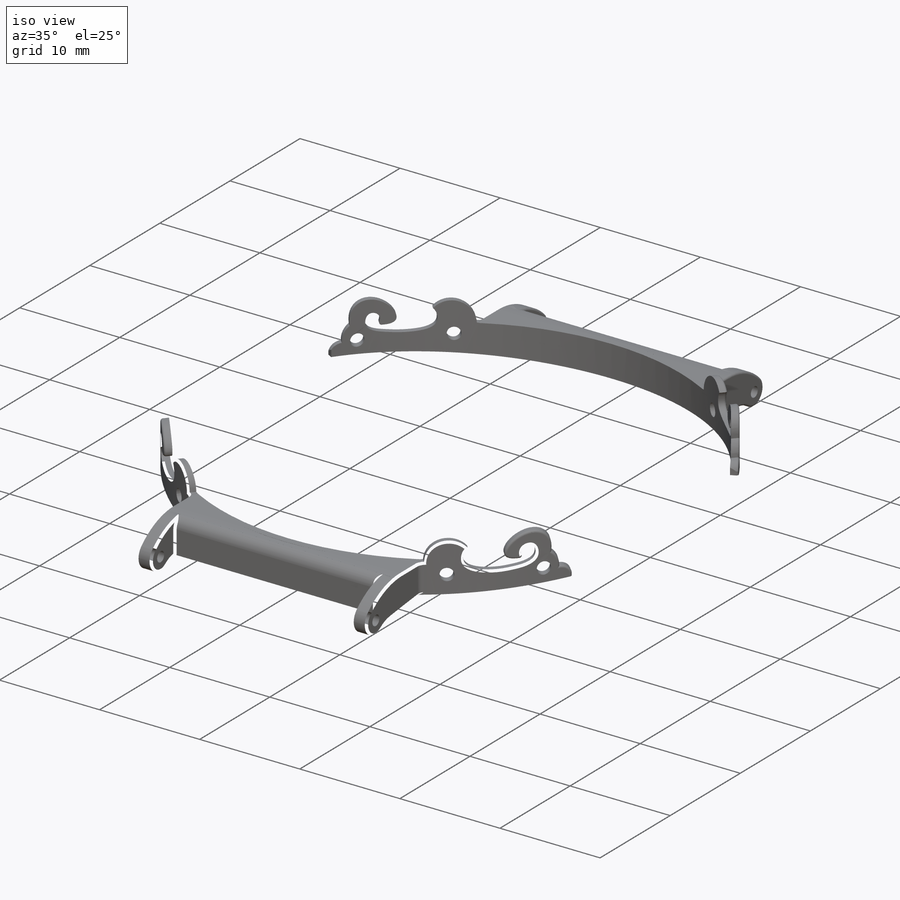
[diagram: iso view]
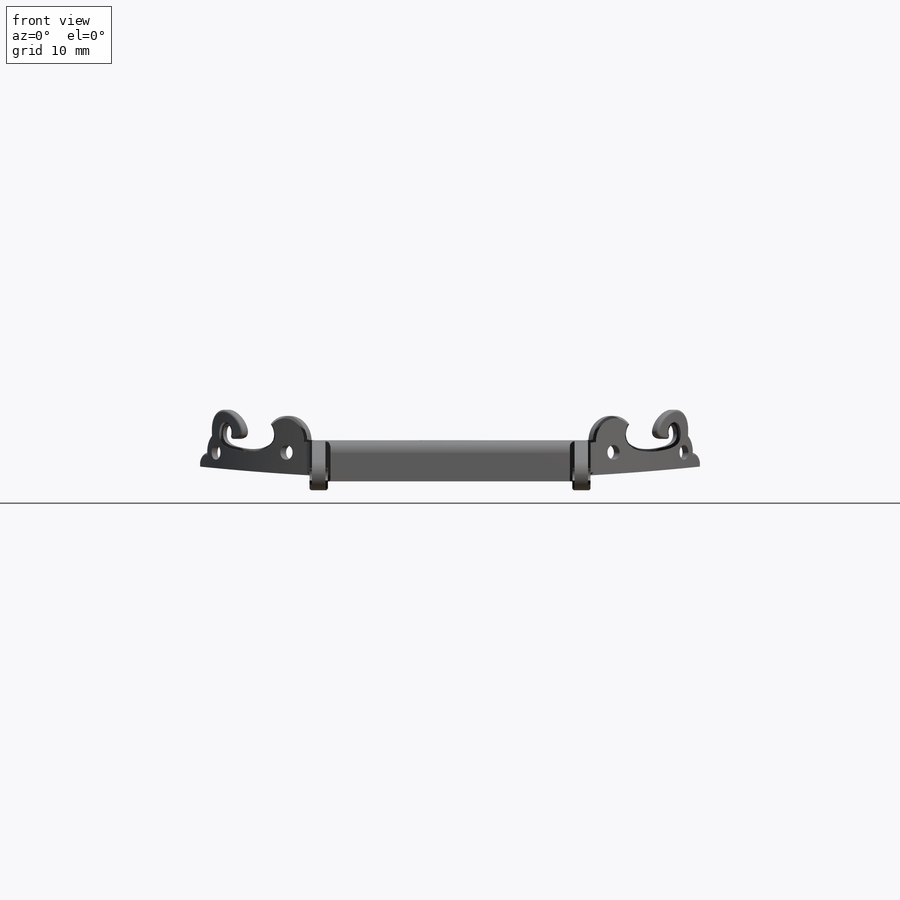
[diagram: front view]
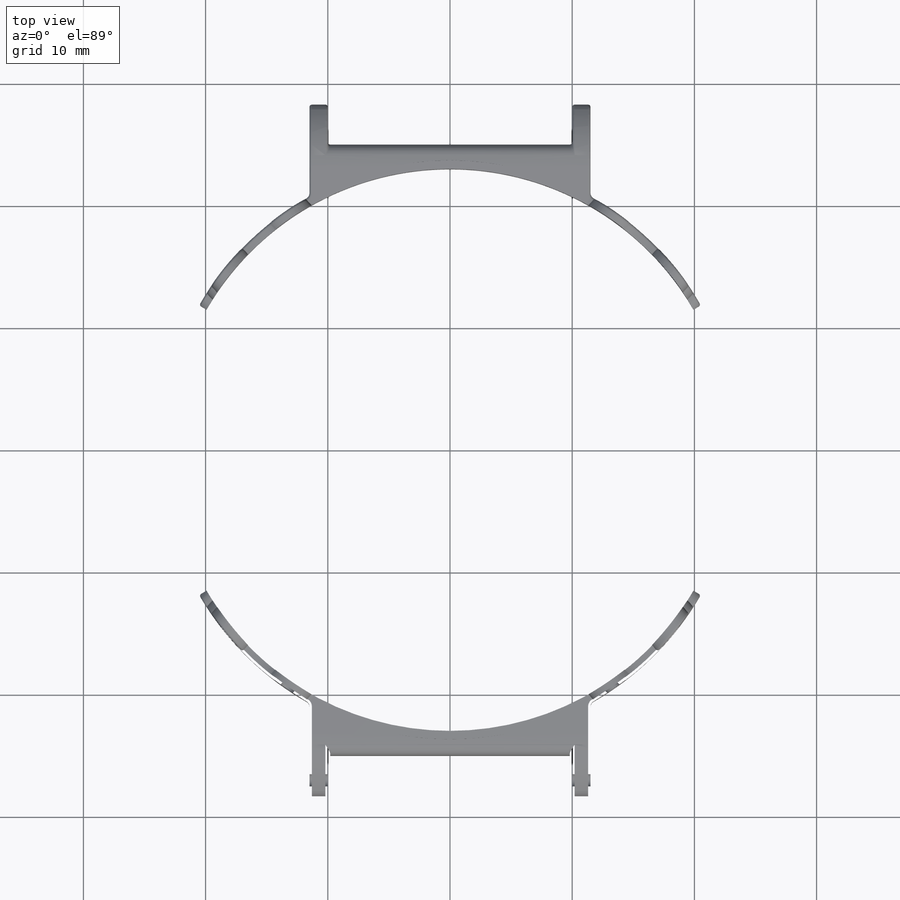
[diagram: top view]
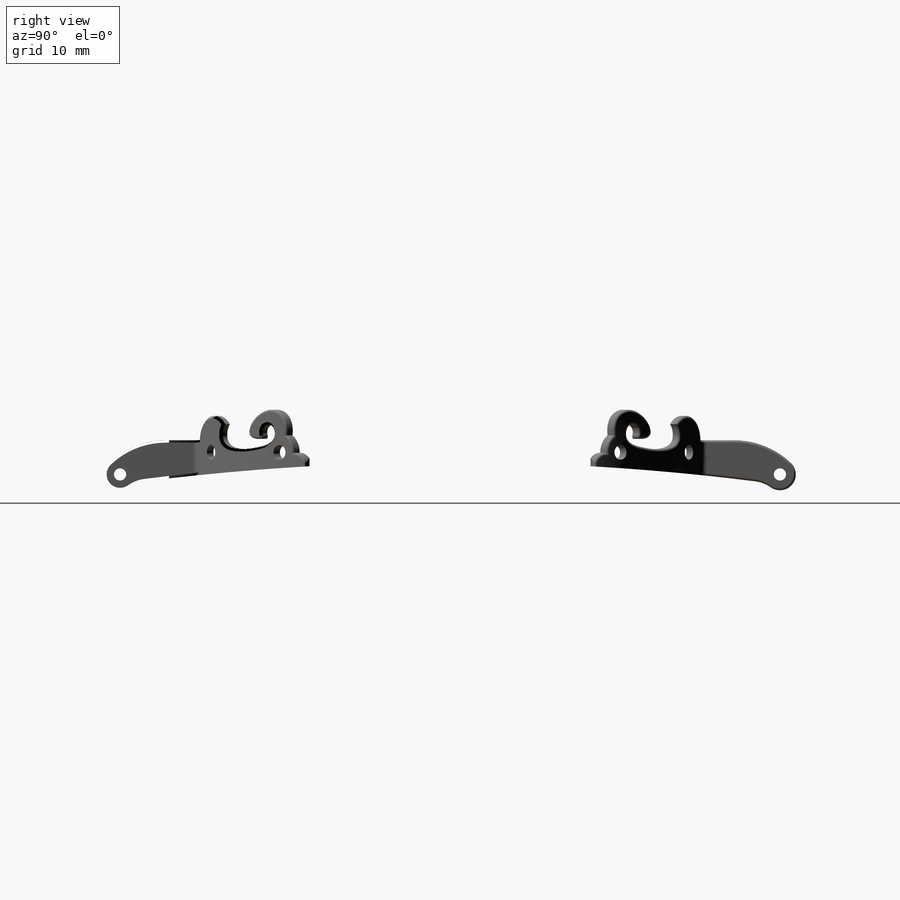
[diagram: right view]
SOLIDWORKS PART (.sldprt)
format: sldprt  version: not decoded by parser v0  size: 3,983,872 bytes
history: native  units: mm
features: sketch x30, cut_extrude x16, fillet x11, plane x9, extrude x7, mirror x4, hole x3, revolve x3, chamfer x2, material x1 (+8 scaffold rows collapsed)
feature tree (94):
  scaffold x8  (default folders/planes/origin — collapsed)
  material  "Matériau <non spécifié>"
  plane  "Plan de face"
  plane  "Plan de dessus"
  plane  "Plan de droite"
  sketch  "Esquisse1"  dims[D1=44.0mm D2=46.0mm]
  sketch  "Esquisse2"  dims[c1.D1=2.0mm c1.D2=35.0mm c2.D1=~62.135719mm c2.D2=25.0mm c2.D3=25.0mm c2.D5=1.0mm c2.D4=1.0mm]
  extrude  "Boss.-Extru.2"  Depth=46mm
  extrude  "Boss.-Extru.3"  Depth=5mm
  sketch  "Esquisse4"  dims[D1=35.0mm D2=44.0mm]
  extrude  "Boss.-Extru.4"  Depth=1mm
  sketch  "Esquisse5"  dims[D1=38.6mm]
  cut_extrude  "Enlèv. mat.-Extru.1"  Depth=46mm
  sketch  "Esquisse6"  dims[D1=0.8mm D2=2.4mm]
  cut_extrude  "Enlèv. mat.-Extru.2"  [1 undecoded]
  sketch  "Esquisse7"  dims[D3=1.3mm D1=2.8mm D2=20.0mm D4=27.0mm D5=1.0mm]
  extrude  "Boss.-Extru.5"  Depth=23mm
  sketch  "Esquisse8"
  cut_extrude  "Enlèv. mat.-Extru.3"  [1 undecoded]
  sketch  "Esquisse9"  dims[D1=20.0mm]
  cut_extrude  "Enlèv. mat.-Extru.4"  [1 undecoded]
  fillet  "Congé2"  Radius=1mm
  sketch  "Esquisse10"  dims[D1=1.0mm]
  cut_extrude  "Enlèv. mat.-Extru.5"  [1 undecoded]
  sketch  "Esquisse11"  dims[c1.D2=~11.43889mm c2.D2=120.0deg c2.D1=0.7mm]
  extrude  "Boss.-Extru.6"  [1 undecoded]
  sketch  "Esquisse12"  dims[D1=0.0mm]
  extrude  "Boss.-Extru.7"  Depth=2.5mm
  plane  "Plan1"
  sketch  "Esquisse13"
  cut_extrude  "Enlèv. mat.-Extru.6"  [1 undecoded]
  sketch  "Esquisse14"  dims[D1=1.2mm D2=1.2mm]
  cut_extrude  "Enlèv. mat.-Extru.8"  [1 undecoded]
  mirror  "Symétrie1"
  fillet  "Congé3"  Radius=0.5mm
  fillet  "Congé4"  Radius=0.2mm
  fillet  "Congé11"  Radius=0.2mm
  fillet  "Congé12"  Radius=0.2mm
  sketch  "Esquisse16"
  cut_extrude  "Enlèv. mat.-Extru.9"  [1 undecoded]
  mirror  "Symétrie2"
  fillet  "Congé6"  Radius=0.2mm
  fillet  "Congé7"  Radius=0.2mm
  plane  "Plan2"
  hole  "Dégagement M1.61"  Diameter=1.8mm Depth=3mm
  sketch  "Esquisse19"  dims[D1=9.0mm D2=9.0mm D3=~2.720365mm]
  sketch  "Esquisse18"  dims[hole-wizard template sketch: 46 standard entries collapsed; hole parameters kept: c15.Diamètre du perçage=1.8mm c15.Profondeur du perçage=3.0mm c15.D3=~14.816244mm c15.Angle de pointe=118.0deg]
  chamfer  "Chanfrein1"  Distance=0.8mm Angle=45deg
  plane  "Plan3"  Offset=27mm
  sketch  "Esquisse20"
  sketch  "Esquisse21"  dims[c1.D1=~15.350761mm c1.D2=~15.350761mm c2.D2=~13.175264deg c2.D3=~9.540183mm c2.D4=~15.350761mm c2.D5=~9.956426mm c2.D6=~3.210803mm c2.D7=~2.198554mm c2.D8=~2.274432mm]
  sketch  "Esquisse22"  dims[c1.D1=2.4mm c2.D1=0.03mm]
  chamfer  "Enroulement5"  Distance=0.03mm
  cut_extrude  "Enlèv. mat.-Extru.10"  Depth=0.03mm
  mirror  "Symétrie9"
  sketch  "Esquisse23"  dims[D1=~20.439228mm]
  cut_extrude  "Enlèv. mat.-Extru.11"  Depth=0.05mm
  plane  "Plan4"  Offset=4mm
  sketch  "Esquisse25"
  sketch  "Esquisse26"
  sketch  "Esquisse27"
  cut_extrude  "Enlèv. mat.-Extru.12"  Depth=0.05mm
  cut_extrude  "Enlèv. mat.-Extru.13"  Depth=0.05mm
  cut_extrude  "Enlèv. mat.-Extru.14"  Depth=0.05mm
  sketch  "Esquisse30"  dims[D3=0.1mm D1=0.0mm D2=0.1mm]
  extrude  "Boss.-Extru.10"  Depth=46mm
  sketch  "Esquisse31"  dims[c1.D3=1.0mm c1.D5=1.0mm c1.D1=~46.402219mm c1.D2=~41.97761mm c2.D1=2.2mm c2.D2=2.2mm c2.D4=0.1mm c2.D5=0.1mm]
  cut_extrude  "Enlèv. mat.-Extru.16"  Depth=0.1mm
  mirror  "Symétrie13"
  fillet  "Congé15"  Radius=2mm
  fillet  "Congé16"  Radius=0.3mm
  fillet  "Congé18"  Radius=0.5mm
  fillet  "Congé19"  Radius=0.5mm
  sketch  "Esquisse32"
  cut_extrude  "Enlèv. mat.-Extru.17"  [1 undecoded]
  sketch  "Esquisse34"
  cut_extrude  "Enlèv. mat.-Extru.18"  [1 undecoded]
  plane  "Plan5"  Offset=1.1mm
  sketch  "Esquisse39"  dims[c1.D1=0.7mm c1.D2=0.1mm c1.D3=0.25mm c2.D2=0.1mm]
  revolve  "Révolution2"  Angle=360deg
  sketch  "Esquisse40"  dims[c1.D1=0.7mm c1.D2=0.1mm c1.D3=0.25mm c2.D2=0.1mm]
  revolve  "Révolution3"  Angle=360deg
  plane  "Plan6"  Offset=1.1mm
  sketch  "Esquisse41"  dims[c1.D1=0.7mm c1.D2=0.1mm c1.D3=0.25mm c2.D2=0.1mm]
  revolve  "Révolution4"  Angle=360deg
  hole  "Symétrie14"  [1 undecoded]
  hole  "Symétrie15"  [1 undecoded]
decode coverage: 51 of 76 modeling features carry decoded parameters
note: ~ marks probable driven/reference dimensions
note: 12 parameter values undecoded
summary: no parameter record found for 12 features
note: suppression state not decoded; provenance and decode notes live in map.json
